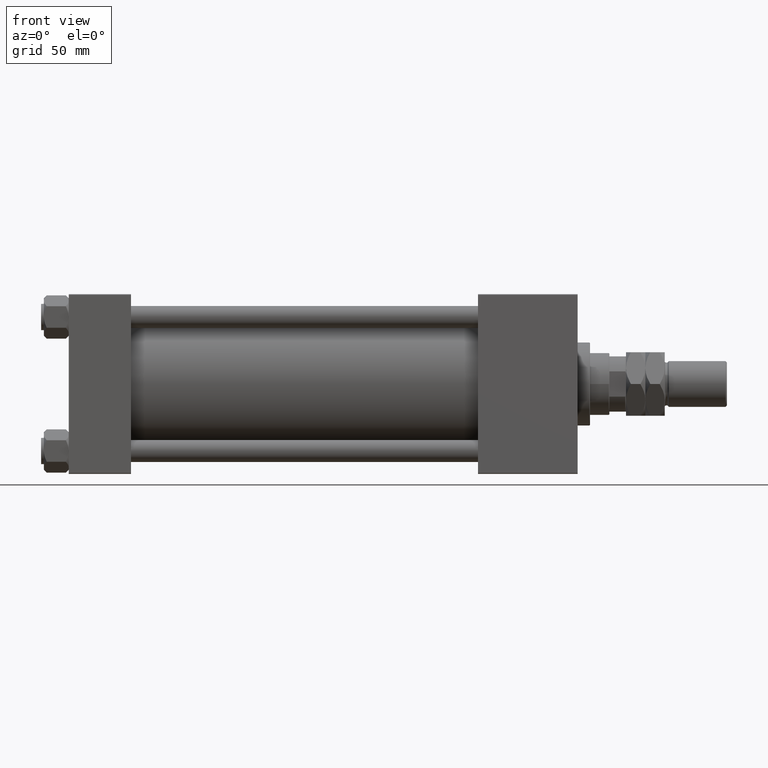
[diagram: clean part render]
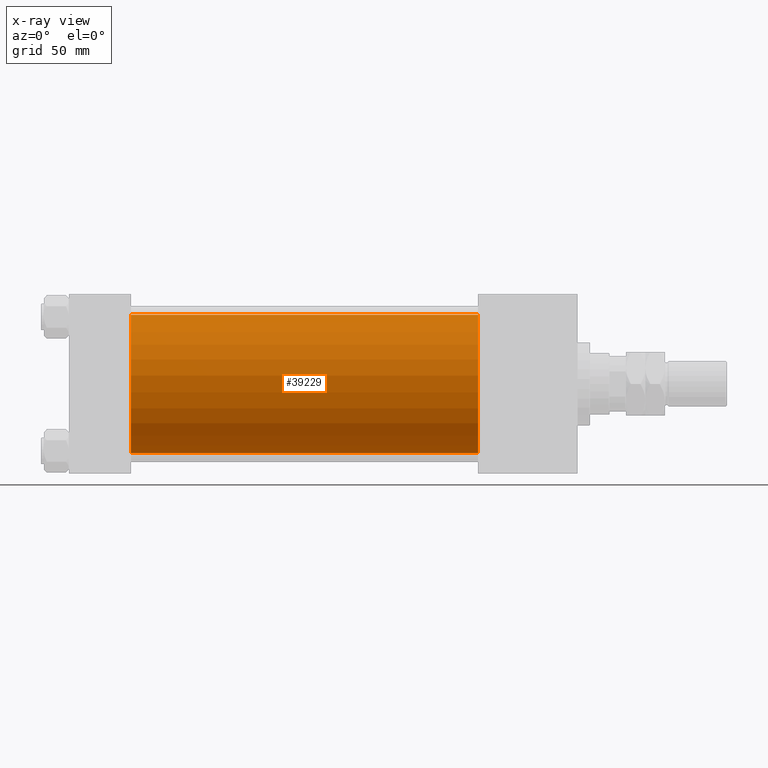
[diagram: x-ray — body ghosted, one internal face saturated and labeled with its STEP entity id]
A machine part, front view, then the same camera in x-ray: the body is ghosted and one INTERNAL B-rep face — a face not visible from any outside direction — is saturated and labeled: STEP entity #39229.
In plain terms, the highlighted cylindrical surface (partial cylindrical patch) has radius 50 mm, axis along (-1, -0, -0).
Its self-contained STEP definition (entity closure, byte-faithful):
#5628 = AXIS2_PLACEMENT_3D ( 'NONE', #18593, #14616, #51382 ) ;
#7701 = LINE ( 'NONE', #23835, #28378 ) ;
#8896 = VERTEX_POINT ( 'NONE', #15986 ) ;
#9233 = CIRCLE ( 'NONE', #15989, 50.00000000000000000 ) ;
#9981 = LINE ( 'NONE', #22157, #44734 ) ;
#11933 = ORIENTED_EDGE ( 'NONE', *, *, #44791, .F. ) ;
#14616 = DIRECTION ( 'NONE',  ( 1.000000000000000000, 0.000000000000000000, 0.000000000000000000 ) ) ;
#15986 = CARTESIAN_POINT ( 'NONE',  ( 45.00000000000000000, -2.602085213965210642E-15, 50.00000000000000000 ) ) ;
#15989 = AXIS2_PLACEMENT_3D ( 'NONE', #48818, #28970, #41150 ) ;
#17521 = AXIS2_PLACEMENT_3D ( 'NONE', #22864, #38991, #21815 ) ;
#18593 = CARTESIAN_POINT ( 'NONE',  ( 296.0000000000000000, -2.602085213965210642E-15, 0.000000000000000000 ) ) ;
#19838 = CARTESIAN_POINT ( 'NONE',  ( 296.0000000000000000, -2.602085213965210642E-15, 50.00000000000000000 ) ) ;
#20158 = VERTEX_POINT ( 'NONE', #48517 ) ;
#21174 = CARTESIAN_POINT ( 'NONE',  ( 296.0000000000000000, 3.521148781771555838E-15, -50.00000000000000000 ) ) ;
#21815 = DIRECTION ( 'NONE',  ( 0.000000000000000000, 0.000000000000000000, 1.000000000000000000 ) ) ;
#22157 = CARTESIAN_POINT ( 'NONE',  ( 296.0000000000000000, -2.602085213965210642E-15, 50.00000000000000000 ) ) ;
#22336 = FACE_OUTER_BOUND ( 'NONE', #40967, .T. ) ;
#22864 = CARTESIAN_POINT ( 'NONE',  ( 296.0000000000000000, -2.602085213965210642E-15, 0.000000000000000000 ) ) ;
#23128 = ORIENTED_EDGE ( 'NONE', *, *, #33359, .T. ) ;
#23382 = CIRCLE ( 'NONE', #5628, 50.00000000000000000 ) ;
#23835 = CARTESIAN_POINT ( 'NONE',  ( 296.0000000000000000, 3.521148781771555838E-15, -50.00000000000000000 ) ) ;
#26351 = DIRECTION ( 'NONE',  ( -1.000000000000000000, -0.000000000000000000, -0.000000000000000000 ) ) ;
#26982 = VERTEX_POINT ( 'NONE', #19838 ) ;
#28378 = VECTOR ( 'NONE', #39982, 1000.000000000000000 ) ;
#28970 = DIRECTION ( 'NONE',  ( 1.000000000000000000, 0.000000000000000000, 0.000000000000000000 ) ) ;
#32225 = EDGE_CURVE ( 'NONE', #32314, #20158, #7701, .T. ) ;
#32314 = VERTEX_POINT ( 'NONE', #21174 ) ;
#33359 = EDGE_CURVE ( 'NONE', #26982, #32314, #23382, .T. ) ;
#34778 = CYLINDRICAL_SURFACE ( 'NONE', #17521, 50.00000000000000000 ) ;
#37704 = ORIENTED_EDGE ( 'NONE', *, *, #32225, .T. ) ;
#38991 = DIRECTION ( 'NONE',  ( -1.000000000000000000, -0.000000000000000000, -0.000000000000000000 ) ) ;
#39229 = ADVANCED_FACE ( 'NONE', ( #22336 ), #34778, .F. ) ;
#39982 = DIRECTION ( 'NONE',  ( -1.000000000000000000, -0.000000000000000000, -0.000000000000000000 ) ) ;
#40967 = EDGE_LOOP ( 'NONE', ( #23128, #37704, #11933, #51518 ) ) ;
#41150 = DIRECTION ( 'NONE',  ( 0.000000000000000000, 0.000000000000000000, -1.000000000000000000 ) ) ;
#44734 = VECTOR ( 'NONE', #26351, 1000.000000000000000 ) ;
#44791 = EDGE_CURVE ( 'NONE', #8896, #20158, #9233, .T. ) ;
#45430 = EDGE_CURVE ( 'NONE', #26982, #8896, #9981, .T. ) ;
#48517 = CARTESIAN_POINT ( 'NONE',  ( 45.00000000000000000, 3.521148781771555838E-15, -50.00000000000000000 ) ) ;
#48818 = CARTESIAN_POINT ( 'NONE',  ( 45.00000000000000000, -2.602085213965210642E-15, 0.000000000000000000 ) ) ;
#51382 = DIRECTION ( 'NONE',  ( 0.000000000000000000, 0.000000000000000000, -1.000000000000000000 ) ) ;
#51518 = ORIENTED_EDGE ( 'NONE', *, *, #45430, .F. ) ;